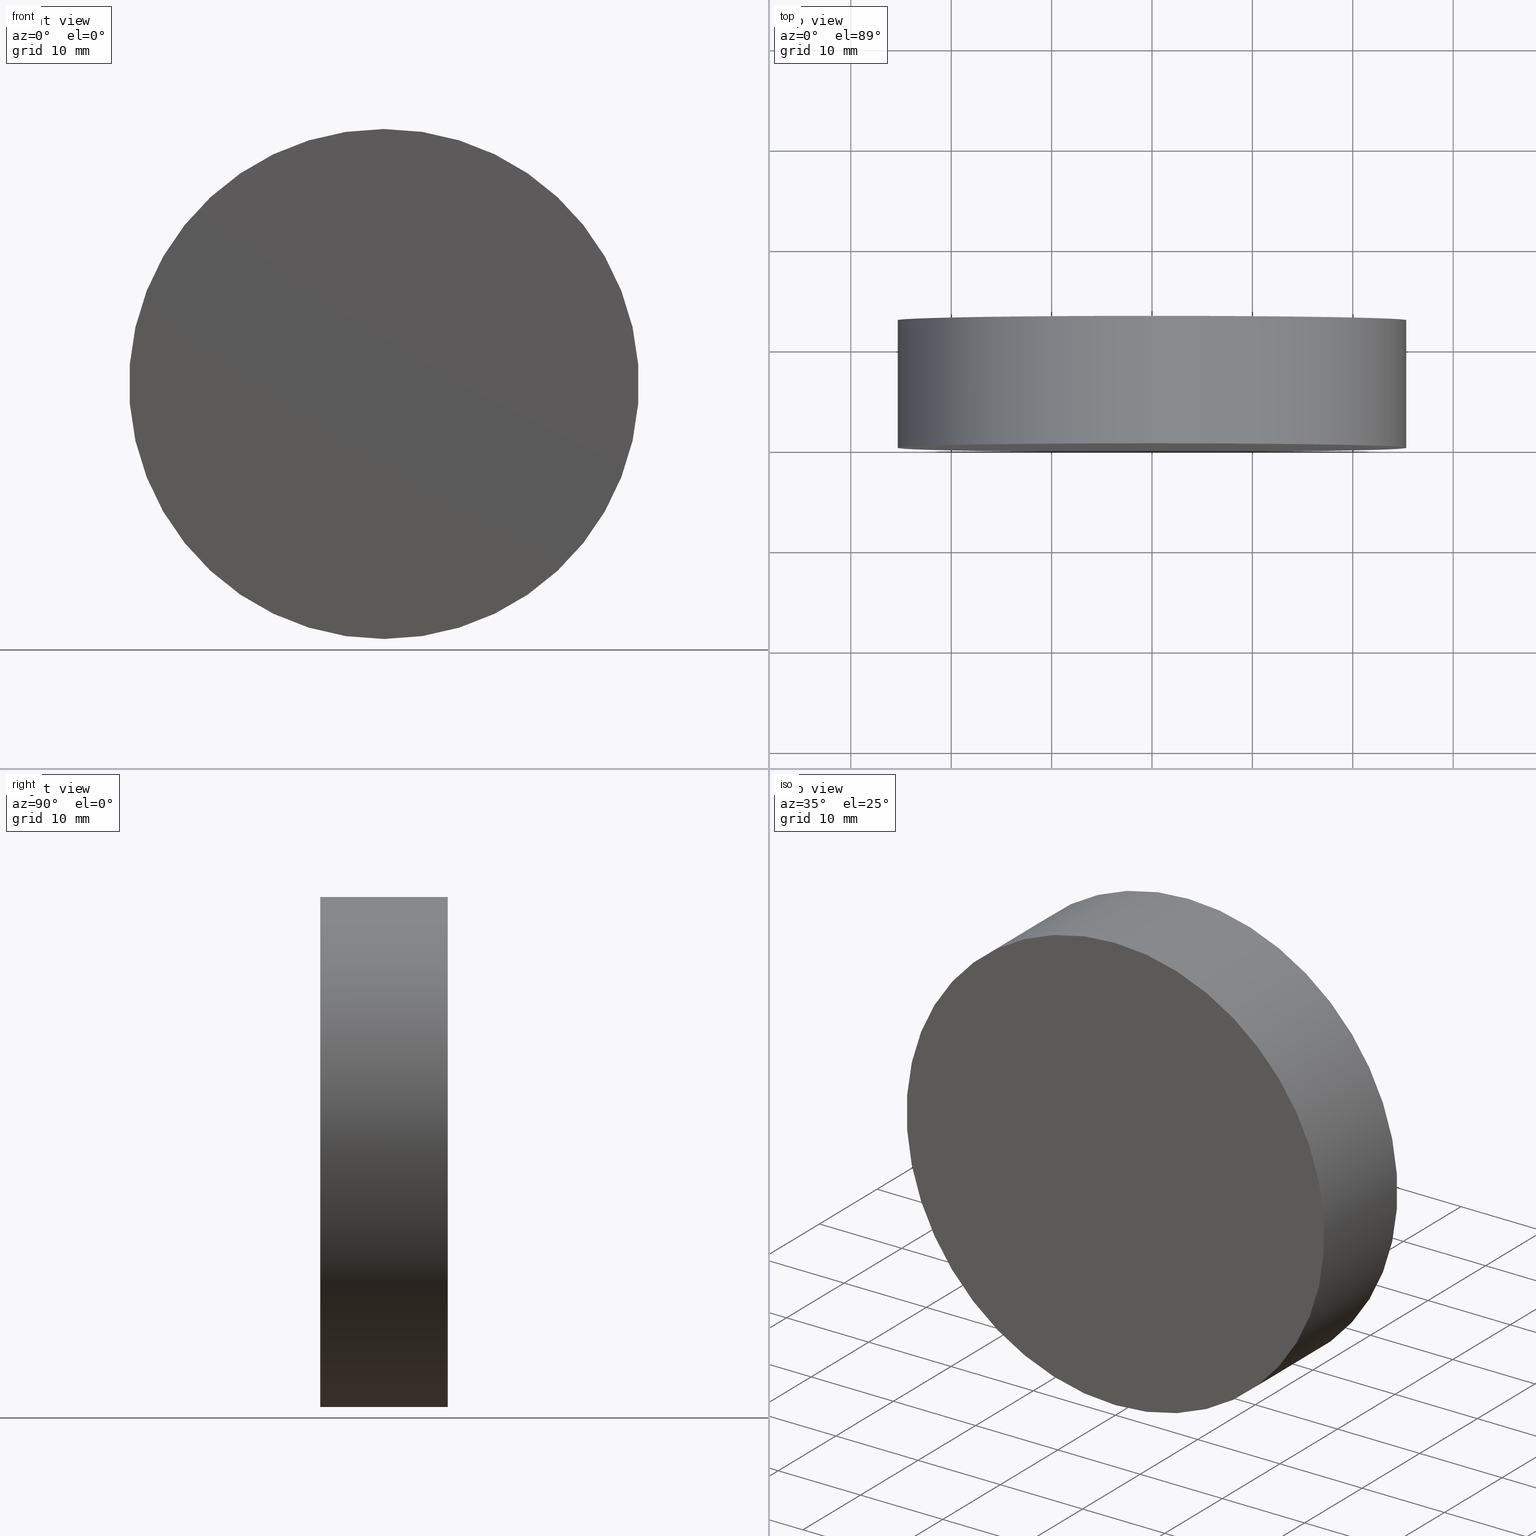
[diagram: canonical four-view strip — front | top / right | iso, engineering-drawing reading convention]
A machine part, canonical four-view strip (front | top / right | iso — engineering-drawing reading convention). The complete STEP part file that produces these views, byte-faithful:
ISO-10303-21;
HEADER;
FILE_DESCRIPTION (( 'STEP AP214' ),
    '1' );
FILE_NAME ('192501.STEP',
    '2019-07-19T03:49:46',
    ( 'user' ),
    ( '΢���й�' ),
    'SwSTEP 2.0',
    'SolidWorks 2016',
    '' );
FILE_SCHEMA (( 'AUTOMOTIVE_DESIGN' ));
ENDSEC;

DATA;
#1 =( GEOMETRIC_REPRESENTATION_CONTEXT ( 3 ) GLOBAL_UNCERTAINTY_ASSIGNED_CONTEXT ( ( #104 ) ) GLOBAL_UNIT_ASSIGNED_CONTEXT ( ( #74, #8, #64 ) ) REPRESENTATION_CONTEXT ( 'NONE', 'WORKASPACE' ) );
#2 = VERTEX_POINT ( 'NONE', #115 ) ;
#3 = FACE_OUTER_BOUND ( 'NONE', #76, .T. ) ;
#4 = UNCERTAINTY_MEASURE_WITH_UNIT (LENGTH_MEASURE( 1.000000000000000100E-005 ), #32, 'distance_accuracy_value', 'NONE');
#5 = PRODUCT_CONTEXT ( 'NONE', #39, 'mechanical' ) ;
#6 = DIRECTION ( 'NONE',  ( 0.0000000000000000000, -0.0000000000000000000, 1.000000000000000000 ) ) ;
#7 = DIRECTION ( 'NONE',  ( 0.0000000000000000000, 0.0000000000000000000, 1.000000000000000000 ) ) ;
#8 =( NAMED_UNIT ( * ) PLANE_ANGLE_UNIT ( ) SI_UNIT ( $, .RADIAN. ) );
#9 = CARTESIAN_POINT ( 'NONE',  ( 0.0000000000000000000, 12.69999999999999900, 0.0000000000000000000 ) ) ;
#10 = VERTEX_POINT ( 'NONE', #51 ) ;
#11 = DIRECTION ( 'NONE',  ( 0.0000000000000000000, 0.0000000000000000000, -1.000000000000000000 ) ) ;
#12 = PRODUCT_DEFINITION_SHAPE ( 'NONE', 'NONE',  #108 ) ;
#13 = PRESENTATION_STYLE_ASSIGNMENT (( #103 ) ) ;
#14 =( GEOMETRIC_REPRESENTATION_CONTEXT ( 3 ) GLOBAL_UNCERTAINTY_ASSIGNED_CONTEXT ( ( #4 ) ) GLOBAL_UNIT_ASSIGNED_CONTEXT ( ( #32, #46, #21 ) ) REPRESENTATION_CONTEXT ( 'NONE', 'WORKASPACE' ) );
#15 = EDGE_CURVE ( 'NONE', #2, #10, #82, .T. ) ;
#16 = CIRCLE ( 'NONE', #68, 25.39999999999999900 ) ;
#17 = CARTESIAN_POINT ( 'NONE',  ( 0.0000000000000000000, 0.0000000000000000000, 0.0000000000000000000 ) ) ;
#18 = DIRECTION ( 'NONE',  ( -0.0000000000000000000, -1.000000000000000000, -0.0000000000000000000 ) ) ;
#19 = DIRECTION ( 'NONE',  ( -0.0000000000000000000, -1.000000000000000000, -0.0000000000000000000 ) ) ;
#20 = FILL_AREA_STYLE ('',( #106 ) ) ;
#21 =( NAMED_UNIT ( * ) SI_UNIT ( $, .STERADIAN. ) SOLID_ANGLE_UNIT ( ) );
#22 = VECTOR ( 'NONE', #96, 1000.000000000000000 ) ;
#23 = AXIS2_PLACEMENT_3D ( 'NONE', #91, #43, #54 ) ;
#24 = CYLINDRICAL_SURFACE ( 'NONE', #107, 25.39999999999999900 ) ;
#25 = EDGE_CURVE ( 'NONE', #140, #79, #16, .T. ) ;
#26 = ORIENTED_EDGE ( 'NONE', *, *, #25, .T. ) ;
#27 = FACE_OUTER_BOUND ( 'NONE', #131, .T. ) ;
#28 = ADVANCED_FACE ( 'NONE', ( #122 ), #24, .T. ) ;
#29 =( LENGTH_UNIT ( ) NAMED_UNIT ( * ) SI_UNIT ( .MILLI., .METRE. ) );
#30 = CARTESIAN_POINT ( 'NONE',  ( 0.0000000000000000000, 0.0000000000000000000, 0.0000000000000000000 ) ) ;
#31 = DIRECTION ( 'NONE',  ( 0.0000000000000000000, 0.0000000000000000000, -1.000000000000000000 ) ) ;
#32 =( LENGTH_UNIT ( ) NAMED_UNIT ( * ) SI_UNIT ( .MILLI., .METRE. ) );
#33 = EDGE_LOOP ( 'NONE', ( #88, #37, #117, #26 ) ) ;
#34 = PRESENTATION_STYLE_ASSIGNMENT (( #127 ) ) ;
#35 = EDGE_CURVE ( 'NONE', #10, #79, #110, .T. ) ;
#36 = SURFACE_STYLE_FILL_AREA ( #20 ) ;
#37 = ORIENTED_EDGE ( 'NONE', *, *, #15, .F. ) ;
#38 = AXIS2_PLACEMENT_3D ( 'NONE', #86, #19, #31 ) ;
#39 = APPLICATION_CONTEXT ( 'automotive_design' ) ;
#40 = EDGE_CURVE ( 'NONE', #10, #2, #50, .T. ) ;
#41 = PLANE ( 'NONE',  #23 ) ;
#42 = SURFACE_SIDE_STYLE ('',( #134 ) ) ;
#43 = DIRECTION ( 'NONE',  ( 0.0000000000000000000, 1.000000000000000000, 0.0000000000000000000 ) ) ;
#44 = DIRECTION ( 'NONE',  ( 0.0000000000000000000, 1.000000000000000000, 0.0000000000000000000 ) ) ;
#45 = CARTESIAN_POINT ( 'NONE',  ( 3.110602869834276900E-015, 12.69999999999999900, 25.39999999999999900 ) ) ;
#46 =( NAMED_UNIT ( * ) PLANE_ANGLE_UNIT ( ) SI_UNIT ( $, .RADIAN. ) );
#47 = AXIS2_PLACEMENT_3D ( 'NONE', #30, #93, #6 ) ;
#48 = EDGE_CURVE ( 'NONE', #79, #140, #101, .T. ) ;
#49 = ORIENTED_EDGE ( 'NONE', *, *, #48, .F. ) ;
#50 = CIRCLE ( 'NONE', #98, 25.39999999999999900 ) ;
#51 = CARTESIAN_POINT ( 'NONE',  ( 3.110602869834276900E-015, 12.69999999999999900, 25.39999999999999900 ) ) ;
#52 = DIRECTION ( 'NONE',  ( 0.0000000000000000000, 0.0000000000000000000, 1.000000000000000000 ) ) ;
#53 = CARTESIAN_POINT ( 'NONE',  ( 0.0000000000000000000, 0.0000000000000000000, -25.39999999999999900 ) ) ;
#54 = DIRECTION ( 'NONE',  ( 0.0000000000000000000, -0.0000000000000000000, 1.000000000000000000 ) ) ;
#55 = CARTESIAN_POINT ( 'NONE',  ( 0.0000000000000000000, 12.69999999999999900, -25.39999999999999900 ) ) ;
#56 = CLOSED_SHELL ( 'NONE', ( #84, #28, #72, #125 ) ) ;
#57 = EDGE_CURVE ( 'NONE', #2, #140, #133, .T. ) ;
#58 = MANIFOLD_SOLID_BREP ( '͹̨-����1', #56 ) ;
#59 = ORIENTED_EDGE ( 'NONE', *, *, #40, .F. ) ;
#60 = ORIENTED_EDGE ( 'NONE', *, *, #35, .T. ) ;
#61 = STYLED_ITEM ( 'NONE', ( #13 ), #120 ) ;
#62 = FILL_AREA_STYLE ('',( #124 ) ) ;
#63 = AXIS2_PLACEMENT_3D ( 'NONE', #126, #85, #52 ) ;
#64 =( NAMED_UNIT ( * ) SI_UNIT ( $, .STERADIAN. ) SOLID_ANGLE_UNIT ( ) );
#65 = DIRECTION ( 'NONE',  ( -0.0000000000000000000, -1.000000000000000000, -0.0000000000000000000 ) ) ;
#66 = CARTESIAN_POINT ( 'NONE',  ( 0.0000000000000000000, 12.69999999999999900, 0.0000000000000000000 ) ) ;
#67 = ORIENTED_EDGE ( 'NONE', *, *, #40, .T. ) ;
#68 = AXIS2_PLACEMENT_3D ( 'NONE', #138, #75, #129 ) ;
#69 = MECHANICAL_DESIGN_GEOMETRIC_PRESENTATION_REPRESENTATION (  '', ( #61 ), #78 ) ;
#70 = APPLICATION_CONTEXT ( 'automotive_design' ) ;
#71 = EDGE_LOOP ( 'NONE', ( #59, #60, #109, #90 ) ) ;
#72 = ADVANCED_FACE ( 'NONE', ( #27 ), #41, .T. ) ;
#73 = FACE_OUTER_BOUND ( 'NONE', #71, .T. ) ;
#74 =( LENGTH_UNIT ( ) NAMED_UNIT ( * ) SI_UNIT ( .MILLI., .METRE. ) );
#75 = DIRECTION ( 'NONE',  ( 0.0000000000000000000, 1.000000000000000000, 0.0000000000000000000 ) ) ;
#76 = EDGE_LOOP ( 'NONE', ( #113, #49 ) ) ;
#77 = PRESENTATION_LAYER_ASSIGNMENT (  '', '', ( #61 ) ) ;
#78 =( GEOMETRIC_REPRESENTATION_CONTEXT ( 3 ) GLOBAL_UNCERTAINTY_ASSIGNED_CONTEXT ( ( #95 ) ) GLOBAL_UNIT_ASSIGNED_CONTEXT ( ( #29, #92, #80 ) ) REPRESENTATION_CONTEXT ( 'NONE', 'WORKASPACE' ) );
#79 = VERTEX_POINT ( 'NONE', #105 ) ;
#80 =( NAMED_UNIT ( * ) SI_UNIT ( $, .STERADIAN. ) SOLID_ANGLE_UNIT ( ) );
#81 = DIRECTION ( 'NONE',  ( 1.000000000000000000, 0.0000000000000000000, 0.0000000000000000000 ) ) ;
#82 = CIRCLE ( 'NONE', #63, 25.39999999999999900 ) ;
#83 = CYLINDRICAL_SURFACE ( 'NONE', #38, 25.39999999999999900 ) ;
#84 = ADVANCED_FACE ( 'NONE', ( #73 ), #83, .T. ) ;
#85 = DIRECTION ( 'NONE',  ( 0.0000000000000000000, 1.000000000000000000, 0.0000000000000000000 ) ) ;
#86 = CARTESIAN_POINT ( 'NONE',  ( 0.0000000000000000000, 12.69999999999999900, 0.0000000000000000000 ) ) ;
#87 = DIRECTION ( 'NONE',  ( 0.0000000000000000000, 1.000000000000000000, 0.0000000000000000000 ) ) ;
#88 = ORIENTED_EDGE ( 'NONE', *, *, #35, .F. ) ;
#89 = PRODUCT ( '192501', '192501', '', ( #5 ) ) ;
#90 = ORIENTED_EDGE ( 'NONE', *, *, #57, .F. ) ;
#91 = CARTESIAN_POINT ( 'NONE',  ( 0.0000000000000000000, 12.69999999999999900, 0.0000000000000000000 ) ) ;
#92 =( NAMED_UNIT ( * ) PLANE_ANGLE_UNIT ( ) SI_UNIT ( $, .RADIAN. ) );
#93 = DIRECTION ( 'NONE',  ( 0.0000000000000000000, 1.000000000000000000, 0.0000000000000000000 ) ) ;
#94 = SURFACE_SIDE_STYLE ('',( #36 ) ) ;
#95 = UNCERTAINTY_MEASURE_WITH_UNIT (LENGTH_MEASURE( 1.000000000000000100E-005 ), #29, 'distance_accuracy_value', 'NONE');
#96 = DIRECTION ( 'NONE',  ( -0.0000000000000000000, -1.000000000000000000, -0.0000000000000000000 ) ) ;
#97 = COLOUR_RGB ( '',1.000000000000000000, 1.000000000000000000, 1.000000000000000000 ) ;
#98 = AXIS2_PLACEMENT_3D ( 'NONE', #9, #87, #137 ) ;
#99 = AXIS2_PLACEMENT_3D ( 'NONE', #17, #7, #81 ) ;
#100 = ORIENTED_EDGE ( 'NONE', *, *, #15, .T. ) ;
#101 = CIRCLE ( 'NONE', #112, 25.39999999999999900 ) ;
#102 = PRODUCT_DEFINITION_CONTEXT ( 'detailed design', #70, 'design' ) ;
#103 = SURFACE_STYLE_USAGE ( .BOTH. , #42 ) ;
#104 = UNCERTAINTY_MEASURE_WITH_UNIT (LENGTH_MEASURE( 1.000000000000000100E-005 ), #74, 'distance_accuracy_value', 'NONE');
#105 = CARTESIAN_POINT ( 'NONE',  ( 3.110602869834276900E-015, 0.0000000000000000000, 25.39999999999999900 ) ) ;
#106 = FILL_AREA_STYLE_COLOUR ( '', #111 ) ;
#107 = AXIS2_PLACEMENT_3D ( 'NONE', #66, #18, #11 ) ;
#108 = PRODUCT_DEFINITION ( 'δ֪', '', #114, #102 ) ;
#109 = ORIENTED_EDGE ( 'NONE', *, *, #48, .T. ) ;
#110 = LINE ( 'NONE', #45, #22 ) ;
#111 = COLOUR_RGB ( '',1.000000000000000000, 1.000000000000000000, 1.000000000000000000 ) ;
#112 = AXIS2_PLACEMENT_3D ( 'NONE', #128, #44, #116 ) ;
#113 = ORIENTED_EDGE ( 'NONE', *, *, #25, .F. ) ;
#114 = PRODUCT_DEFINITION_FORMATION_WITH_SPECIFIED_SOURCE ( '�κ�', '', #89, .NOT_KNOWN. ) ;
#115 = CARTESIAN_POINT ( 'NONE',  ( 0.0000000000000000000, 12.69999999999999900, -25.39999999999999900 ) ) ;
#116 = DIRECTION ( 'NONE',  ( 0.0000000000000000000, 0.0000000000000000000, 1.000000000000000000 ) ) ;
#117 = ORIENTED_EDGE ( 'NONE', *, *, #57, .T. ) ;
#118 = APPLICATION_PROTOCOL_DEFINITION ( 'draft international standard', 'automotive_design', 1998, #39 ) ;
#119 = SHAPE_DEFINITION_REPRESENTATION ( #12, #120 ) ;
#120 = ADVANCED_BREP_SHAPE_REPRESENTATION ( '192501', ( #58, #99 ), #14 ) ;
#121 = STYLED_ITEM ( 'NONE', ( #34 ), #58 ) ;
#122 = FACE_OUTER_BOUND ( 'NONE', #33, .T. ) ;
#123 = PRODUCT_RELATED_PRODUCT_CATEGORY ( 'part', '', ( #89 ) ) ;
#124 = FILL_AREA_STYLE_COLOUR ( '', #97 ) ;
#125 = ADVANCED_FACE ( 'NONE', ( #3 ), #139, .F. ) ;
#126 = CARTESIAN_POINT ( 'NONE',  ( 0.0000000000000000000, 12.69999999999999900, 0.0000000000000000000 ) ) ;
#127 = SURFACE_STYLE_USAGE ( .BOTH. , #94 ) ;
#128 = CARTESIAN_POINT ( 'NONE',  ( 0.0000000000000000000, 0.0000000000000000000, 0.0000000000000000000 ) ) ;
#129 = DIRECTION ( 'NONE',  ( 0.0000000000000000000, 0.0000000000000000000, 1.000000000000000000 ) ) ;
#130 = PRESENTATION_LAYER_ASSIGNMENT (  '', '', ( #121 ) ) ;
#131 = EDGE_LOOP ( 'NONE', ( #100, #67 ) ) ;
#132 = VECTOR ( 'NONE', #65, 1000.000000000000000 ) ;
#133 = LINE ( 'NONE', #55, #132 ) ;
#134 = SURFACE_STYLE_FILL_AREA ( #62 ) ;
#135 = MECHANICAL_DESIGN_GEOMETRIC_PRESENTATION_REPRESENTATION (  '', ( #121 ), #1 ) ;
#136 = APPLICATION_PROTOCOL_DEFINITION ( 'draft international standard', 'automotive_design', 1998, #70 ) ;
#137 = DIRECTION ( 'NONE',  ( 0.0000000000000000000, 0.0000000000000000000, 1.000000000000000000 ) ) ;
#138 = CARTESIAN_POINT ( 'NONE',  ( 0.0000000000000000000, 0.0000000000000000000, 0.0000000000000000000 ) ) ;
#139 = PLANE ( 'NONE',  #47 ) ;
#140 = VERTEX_POINT ( 'NONE', #53 ) ;
ENDSEC;
END-ISO-10303-21;
